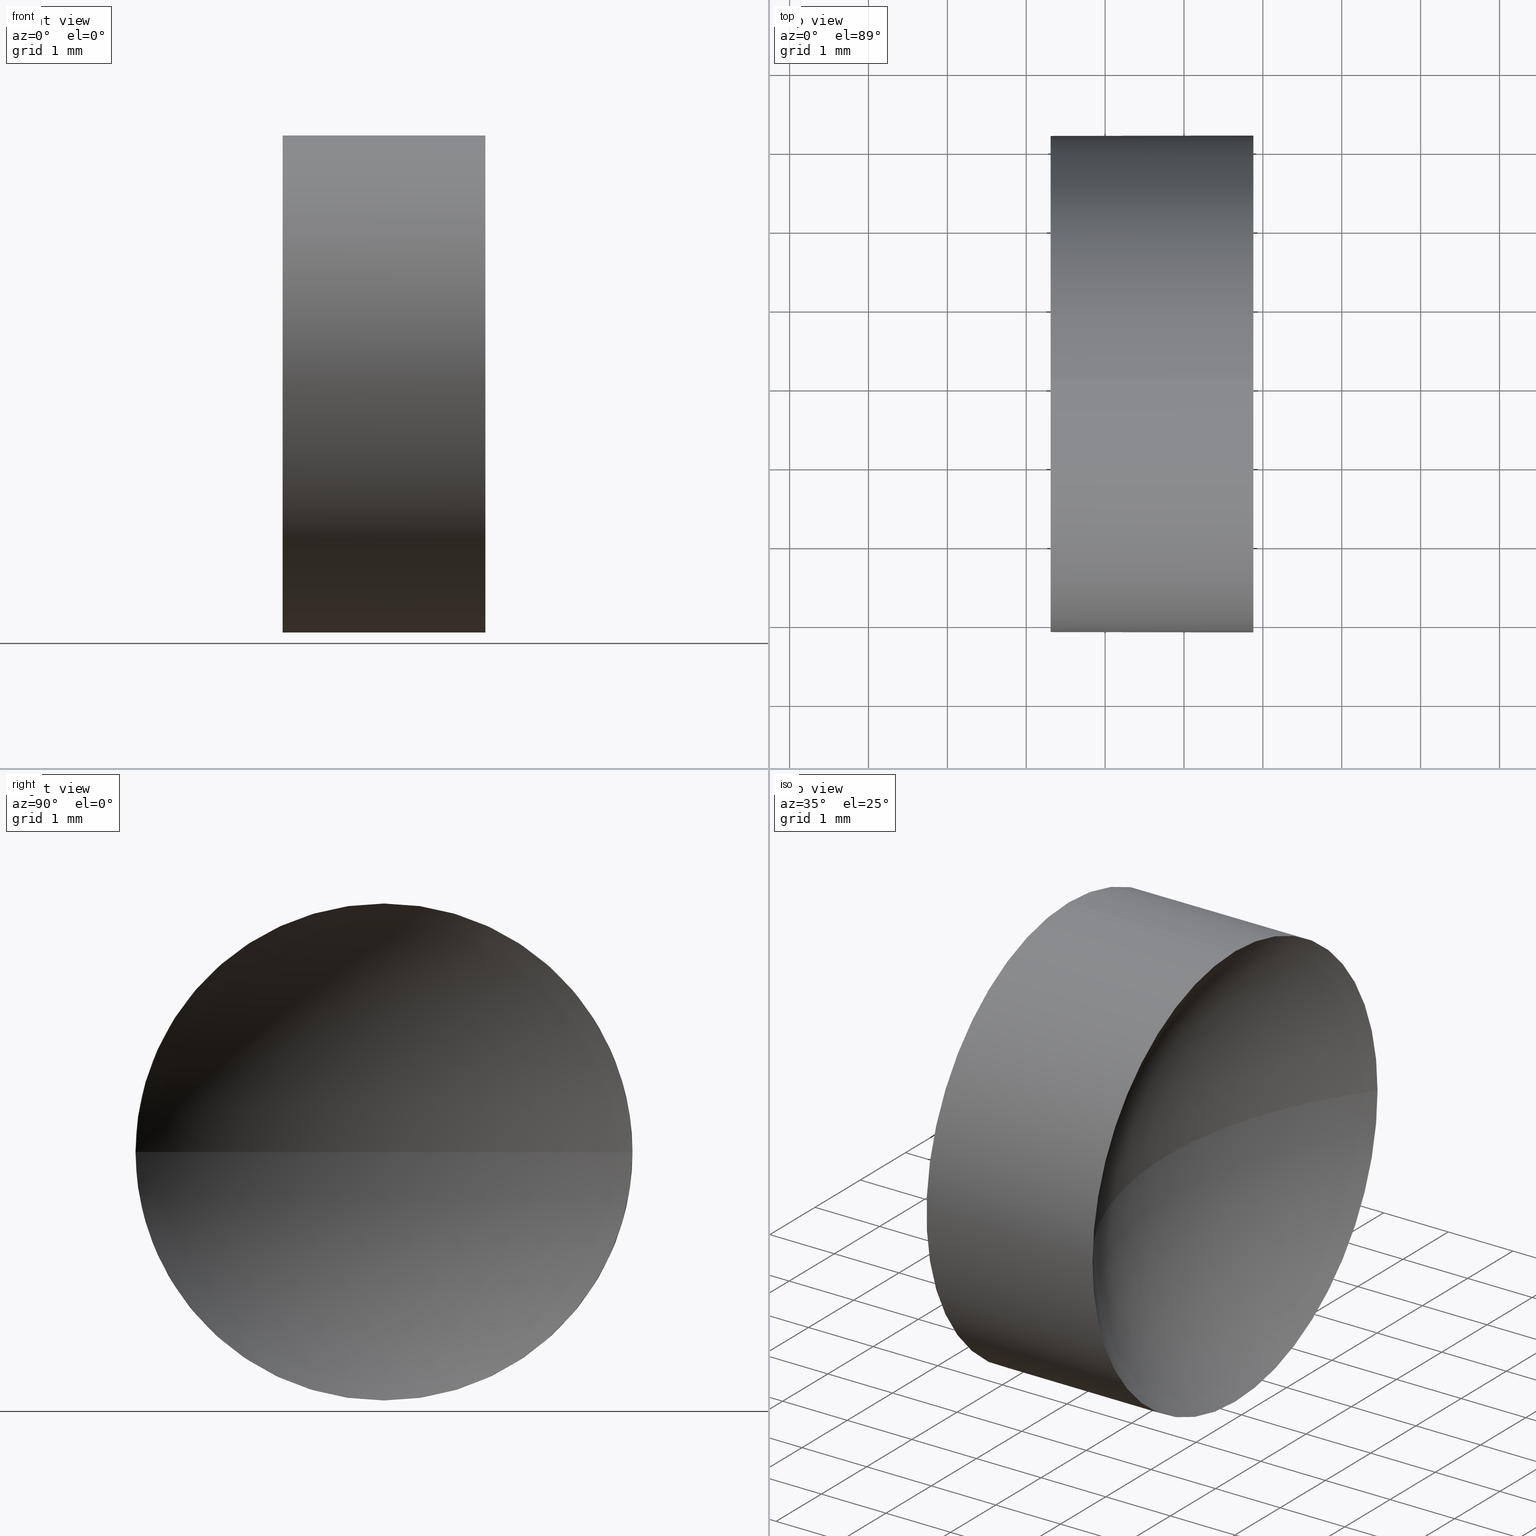
[diagram: canonical four-view strip — front | top / right | iso, engineering-drawing reading convention]
A machine part, canonical four-view strip (front | top / right | iso — engineering-drawing reading convention). The complete STEP part file that produces these views, byte-faithful:
ISO-10303-21;
HEADER;
FILE_DESCRIPTION (( 'STEP AP214' ),
    '1' );
FILE_NAME ('120124.STEP',
    '2019-06-19T01:46:05',
    ( '' ),
    ( '' ),
    'SwSTEP 2.0',
    'SolidWorks 2016',
    '' );
FILE_SCHEMA (( 'AUTOMOTIVE_DESIGN' ));
ENDSEC;

DATA;
#1 = DIRECTION ( 'NONE',  ( 0.0000000000000000000, 0.0000000000000000000, 1.000000000000000000 ) ) ;
#2 = CARTESIAN_POINT ( 'NONE',  ( 24.87970788047242400, 13.03112609140304000, 3.149999999999998100 ) ) ;
#3 = FACE_OUTER_BOUND ( 'NONE', #4, .T. ) ;
#4 = EDGE_LOOP ( 'NONE', ( #166, #107, #28, #45 ) ) ;
#5 = CARTESIAN_POINT ( 'NONE',  ( 28.97926883257449000, 13.03112609140304000, 0.0000000000000000000 ) ) ;
#6 = DIRECTION ( 'NONE',  ( 0.0000000000000000000, 0.0000000000000000000, -1.000000000000000000 ) ) ;
#7 = MECHANICAL_DESIGN_GEOMETRIC_PRESENTATION_REPRESENTATION (  '', ( #132 ), #102 ) ;
#8 = CARTESIAN_POINT ( 'NONE',  ( 24.87970788047242400, 13.03112609140304000, 0.0000000000000000000 ) ) ;
#9 = CARTESIAN_POINT ( 'NONE',  ( 24.87970788047242400, 13.03112609140304000, 0.0000000000000000000 ) ) ;
#10 = CIRCLE ( 'NONE', #96, 5.170000000000000800 ) ;
#11 = CARTESIAN_POINT ( 'NONE',  ( 20.68403063513288800, 13.03112609140304000, -3.149999999999998100 ) ) ;
#12 =( GEOMETRIC_REPRESENTATION_CONTEXT ( 3 ) GLOBAL_UNCERTAINTY_ASSIGNED_CONTEXT ( ( #97 ) ) GLOBAL_UNIT_ASSIGNED_CONTEXT ( ( #171, #17, #131 ) ) REPRESENTATION_CONTEXT ( 'NONE', 'WORKASPACE' ) );
#13 = DIRECTION ( 'NONE',  ( 0.0000000000000000000, -1.224646799147353200E-016, 1.000000000000000000 ) ) ;
#14 =( NAMED_UNIT ( * ) PLANE_ANGLE_UNIT ( ) SI_UNIT ( $, .RADIAN. ) );
#15 = CARTESIAN_POINT ( 'NONE',  ( 0.0000000000000000000, 0.0000000000000000000, 0.0000000000000000000 ) ) ;
#16 = ORIENTED_EDGE ( 'NONE', *, *, #93, .T. ) ;
#17 =( NAMED_UNIT ( * ) PLANE_ANGLE_UNIT ( ) SI_UNIT ( $, .RADIAN. ) );
#18 = ORIENTED_EDGE ( 'NONE', *, *, #50, .F. ) ;
#19 = DIRECTION ( 'NONE',  ( -1.000000000000000000, -0.0000000000000000000, -0.0000000000000000000 ) ) ;
#20 = CIRCLE ( 'NONE', #145, 5.169999999999999000 ) ;
#21 = CARTESIAN_POINT ( 'NONE',  ( 20.68403063513288800, 13.03112609140304000, 0.0000000000000000000 ) ) ;
#22 = AXIS2_PLACEMENT_3D ( 'NONE', #46, #163, #64 ) ;
#23 = ORIENTED_EDGE ( 'NONE', *, *, #59, .F. ) ;
#24 = DIRECTION ( 'NONE',  ( -1.000000000000000000, -0.0000000000000000000, -0.0000000000000000000 ) ) ;
#25 = DIRECTION ( 'NONE',  ( 0.0000000000000000000, 0.0000000000000000000, 1.000000000000000000 ) ) ;
#26 = VECTOR ( 'NONE', #19, 1000.000000000000000 ) ;
#27 = ADVANCED_BREP_SHAPE_REPRESENTATION ( '120124', ( #175, #122 ), #12 ) ;
#28 = ORIENTED_EDGE ( 'NONE', *, *, #172, .F. ) ;
#29 = FILL_AREA_STYLE_COLOUR ( '', #47 ) ;
#30 =( NAMED_UNIT ( * ) SI_UNIT ( $, .STERADIAN. ) SOLID_ANGLE_UNIT ( ) );
#31 = PRESENTATION_STYLE_ASSIGNMENT (( #157 ) ) ;
#32 = CARTESIAN_POINT ( 'NONE',  ( 28.97926883257449000, 13.03112609140304000, 0.0000000000000000000 ) ) ;
#33 = DIRECTION ( 'NONE',  ( 0.0000000000000000000, 0.0000000000000000000, 1.000000000000000000 ) ) ;
#34 = VECTOR ( 'NONE', #125, 1000.000000000000000 ) ;
#35 = ORIENTED_EDGE ( 'NONE', *, *, #50, .T. ) ;
#36 = CARTESIAN_POINT ( 'NONE',  ( 24.87970788047242400, 13.03112609140304000, 0.0000000000000000000 ) ) ;
#37 = FACE_OUTER_BOUND ( 'NONE', #183, .T. ) ;
#38 = VERTEX_POINT ( 'NONE', #177 ) ;
#39 = DIRECTION ( 'NONE',  ( 0.0000000000000000000, 0.0000000000000000000, 1.000000000000000000 ) ) ;
#40 = LINE ( 'NONE', #11, #34 ) ;
#41 = DIRECTION ( 'NONE',  ( 0.0000000000000000000, 0.0000000000000000000, 1.000000000000000000 ) ) ;
#42 = ORIENTED_EDGE ( 'NONE', *, *, #134, .F. ) ;
#43 = FILL_AREA_STYLE ('',( #29 ) ) ;
#44 = DIRECTION ( 'NONE',  ( 1.000000000000000000, 0.0000000000000000000, 0.0000000000000000000 ) ) ;
#45 = ORIENTED_EDGE ( 'NONE', *, *, #79, .F. ) ;
#46 = CARTESIAN_POINT ( 'NONE',  ( 22.30926883257449200, 13.03112609140304000, 0.0000000000000000000 ) ) ;
#47 = COLOUR_RGB ( '',1.000000000000000000, 1.000000000000000000, 1.000000000000000000 ) ;
#48 = STYLED_ITEM ( 'NONE', ( #31 ), #27 ) ;
#49 = ORIENTED_EDGE ( 'NONE', *, *, #67, .T. ) ;
#50 = EDGE_CURVE ( 'NONE', #78, #139, #105, .T. ) ;
#51 = PRODUCT_DEFINITION_SHAPE ( 'NONE', 'NONE',  #153 ) ;
#52 = AXIS2_PLACEMENT_3D ( 'NONE', #21, #65, #160 ) ;
#53 = FACE_OUTER_BOUND ( 'NONE', #66, .T. ) ;
#54 = APPLICATION_PROTOCOL_DEFINITION ( 'draft international standard', 'automotive_design', 1998, #118 ) ;
#55 = FILL_AREA_STYLE ('',( #147 ) ) ;
#56 = APPLICATION_CONTEXT ( 'automotive_design' ) ;
#57 = ORIENTED_EDGE ( 'NONE', *, *, #172, .T. ) ;
#58 =( LENGTH_UNIT ( ) NAMED_UNIT ( * ) SI_UNIT ( .MILLI., .METRE. ) );
#59 = EDGE_CURVE ( 'NONE', #162, #176, #133, .T. ) ;
#60 = CARTESIAN_POINT ( 'NONE',  ( 22.30926883257449200, 13.03112609140304000, -3.149999999999998100 ) ) ;
#61 = AXIS2_PLACEMENT_3D ( 'NONE', #9, #108, #83 ) ;
#62 = SPHERICAL_SURFACE ( 'NONE', #185, 5.169999999999999000 ) ;
#63 = FACE_OUTER_BOUND ( 'NONE', #152, .T. ) ;
#64 = DIRECTION ( 'NONE',  ( 0.0000000000000000000, 0.0000000000000000000, 1.000000000000000000 ) ) ;
#65 = DIRECTION ( 'NONE',  ( -1.000000000000000000, -0.0000000000000000000, -0.0000000000000000000 ) ) ;
#66 = EDGE_LOOP ( 'NONE', ( #103, #178, #138, #49, #18 ) ) ;
#67 = EDGE_CURVE ( 'NONE', #162, #139, #170, .T. ) ;
#68 = CARTESIAN_POINT ( 'NONE',  ( 24.87970788047242400, 9.881126091403041700, 0.0000000000000000000 ) ) ;
#69 = ORIENTED_EDGE ( 'NONE', *, *, #59, .T. ) ;
#70 = CARTESIAN_POINT ( 'NONE',  ( 22.30926883257449200, 13.03112609140304000, 0.0000000000000000000 ) ) ;
#71 = PLANE ( 'NONE',  #141 ) ;
#72 = AXIS2_PLACEMENT_3D ( 'NONE', #8, #82, #39 ) ;
#73 = CLOSED_SHELL ( 'NONE', ( #89, #168, #143, #87, #144 ) ) ;
#74 = DIRECTION ( 'NONE',  ( 0.0000000000000000000, -1.000000000000000000, 0.0000000000000000000 ) ) ;
#75 = EDGE_CURVE ( 'NONE', #123, #162, #95, .T. ) ;
#76 = CARTESIAN_POINT ( 'NONE',  ( 24.87970788047242400, 16.18112609140303700, 3.857637417314161200E-016 ) ) ;
#77 = CYLINDRICAL_SURFACE ( 'NONE', #181, 3.149999999999998100 ) ;
#78 = VERTEX_POINT ( 'NONE', #60 ) ;
#79 = EDGE_CURVE ( 'NONE', #38, #123, #98, .T. ) ;
#80 = PRODUCT_DEFINITION_FORMATION_WITH_SPECIFIED_SOURCE ( '�κ�', '', #146, .NOT_KNOWN. ) ;
#81 = DIRECTION ( 'NONE',  ( -1.000000000000000000, -0.0000000000000000000, -0.0000000000000000000 ) ) ;
#82 = DIRECTION ( 'NONE',  ( -1.000000000000000000, -0.0000000000000000000, -0.0000000000000000000 ) ) ;
#83 = DIRECTION ( 'NONE',  ( 0.0000000000000000000, 0.0000000000000000000, 1.000000000000000000 ) ) ;
#84 = CARTESIAN_POINT ( 'NONE',  ( 28.97926883257449000, 13.03112609140304000, 0.0000000000000000000 ) ) ;
#85 = CIRCLE ( 'NONE', #154, 3.149999999999998100 ) ;
#86 = ORIENTED_EDGE ( 'NONE', *, *, #134, .T. ) ;
#87 = ADVANCED_FACE ( 'NONE', ( #53 ), #100, .T. ) ;
#88 = CARTESIAN_POINT ( 'NONE',  ( 22.30926883257449200, 13.03112609140304000, 0.0000000000000000000 ) ) ;
#89 = ADVANCED_FACE ( 'NONE', ( #63 ), #77, .T. ) ;
#90 = EDGE_LOOP ( 'NONE', ( #121, #23, #117, #57 ) ) ;
#91 = DIRECTION ( 'NONE',  ( 0.0000000000000000000, 0.0000000000000000000, 1.000000000000000000 ) ) ;
#92 = AXIS2_PLACEMENT_3D ( 'NONE', #5, #91, #74 ) ;
#93 = EDGE_CURVE ( 'NONE', #176, #38, #164, .T. ) ;
#94 = DIRECTION ( 'NONE',  ( 0.0000000000000000000, 0.0000000000000000000, 1.000000000000000000 ) ) ;
#95 = CIRCLE ( 'NONE', #61, 3.149999999999998100 ) ;
#96 = AXIS2_PLACEMENT_3D ( 'NONE', #32, #6, #130 ) ;
#97 = UNCERTAINTY_MEASURE_WITH_UNIT (LENGTH_MEASURE( 1.000000000000000100E-005 ), #171, 'distance_accuracy_value', 'NONE');
#98 = CIRCLE ( 'NONE', #106, 3.149999999999998100 ) ;
#99 = EDGE_CURVE ( 'NONE', #176, #109, #20, .T. ) ;
#100 = CYLINDRICAL_SURFACE ( 'NONE', #52, 3.149999999999998100 ) ;
#101 = DIRECTION ( 'NONE',  ( 0.0000000000000000000, 0.0000000000000000000, -1.000000000000000000 ) ) ;
#102 =( GEOMETRIC_REPRESENTATION_CONTEXT ( 3 ) GLOBAL_UNCERTAINTY_ASSIGNED_CONTEXT ( ( #184 ) ) GLOBAL_UNIT_ASSIGNED_CONTEXT ( ( #58, #129, #30 ) ) REPRESENTATION_CONTEXT ( 'NONE', 'WORKASPACE' ) );
#103 = ORIENTED_EDGE ( 'NONE', *, *, #158, .F. ) ;
#104 = APPLICATION_PROTOCOL_DEFINITION ( 'draft international standard', 'automotive_design', 1998, #56 ) ;
#105 = CIRCLE ( 'NONE', #22, 3.149999999999998100 ) ;
#106 = AXIS2_PLACEMENT_3D ( 'NONE', #36, #81, #135 ) ;
#107 = ORIENTED_EDGE ( 'NONE', *, *, #99, .T. ) ;
#108 = DIRECTION ( 'NONE',  ( -1.000000000000000000, -0.0000000000000000000, -0.0000000000000000000 ) ) ;
#109 = VERTEX_POINT ( 'NONE', #165 ) ;
#110 = PRESENTATION_LAYER_ASSIGNMENT (  '', '', ( #48 ) ) ;
#111 = SHAPE_DEFINITION_REPRESENTATION ( #51, #27 ) ;
#112 = FACE_OUTER_BOUND ( 'NONE', #90, .T. ) ;
#113 = ORIENTED_EDGE ( 'NONE', *, *, #158, .T. ) ;
#114 = PRODUCT_CONTEXT ( 'NONE', #118, 'mechanical' ) ;
#115 = SURFACE_SIDE_STYLE ('',( #151 ) ) ;
#116 = SURFACE_STYLE_USAGE ( .BOTH. , #174 ) ;
#117 = ORIENTED_EDGE ( 'NONE', *, *, #75, .F. ) ;
#118 = APPLICATION_CONTEXT ( 'automotive_design' ) ;
#119 = MECHANICAL_DESIGN_GEOMETRIC_PRESENTATION_REPRESENTATION (  '', ( #48 ), #127 ) ;
#120 = PRESENTATION_STYLE_ASSIGNMENT (( #116 ) ) ;
#121 = ORIENTED_EDGE ( 'NONE', *, *, #99, .F. ) ;
#122 = AXIS2_PLACEMENT_3D ( 'NONE', #15, #33, #44 ) ;
#123 = VERTEX_POINT ( 'NONE', #68 ) ;
#124 = CARTESIAN_POINT ( 'NONE',  ( 22.30926883257449200, 13.03112609140304000, 3.149999999999998100 ) ) ;
#125 = DIRECTION ( 'NONE',  ( -1.000000000000000000, -0.0000000000000000000, -0.0000000000000000000 ) ) ;
#126 = DIRECTION ( 'NONE',  ( 0.0000000000000000000, -1.000000000000000000, -1.224646799147353200E-016 ) ) ;
#127 =( GEOMETRIC_REPRESENTATION_CONTEXT ( 3 ) GLOBAL_UNCERTAINTY_ASSIGNED_CONTEXT ( ( #149 ) ) GLOBAL_UNIT_ASSIGNED_CONTEXT ( ( #173, #14, #128 ) ) REPRESENTATION_CONTEXT ( 'NONE', 'WORKASPACE' ) );
#128 =( NAMED_UNIT ( * ) SI_UNIT ( $, .STERADIAN. ) SOLID_ANGLE_UNIT ( ) );
#129 =( NAMED_UNIT ( * ) PLANE_ANGLE_UNIT ( ) SI_UNIT ( $, .RADIAN. ) );
#130 = DIRECTION ( 'NONE',  ( -1.000000000000000000, 0.0000000000000000000, 0.0000000000000000000 ) ) ;
#131 =( NAMED_UNIT ( * ) SI_UNIT ( $, .STERADIAN. ) SOLID_ANGLE_UNIT ( ) );
#132 = STYLED_ITEM ( 'NONE', ( #120 ), #175 ) ;
#133 = CIRCLE ( 'NONE', #72, 3.149999999999998100 ) ;
#134 = EDGE_CURVE ( 'NONE', #139, #78, #85, .T. ) ;
#135 = DIRECTION ( 'NONE',  ( 0.0000000000000000000, 0.0000000000000000000, 1.000000000000000000 ) ) ;
#136 = PRODUCT_DEFINITION_CONTEXT ( 'detailed design', #56, 'design' ) ;
#137 = CARTESIAN_POINT ( 'NONE',  ( 28.97926883257449000, 13.03112609140304000, 0.0000000000000000000 ) ) ;
#138 = ORIENTED_EDGE ( 'NONE', *, *, #75, .T. ) ;
#139 = VERTEX_POINT ( 'NONE', #124 ) ;
#140 = DIRECTION ( 'NONE',  ( 0.0000000000000000000, -1.000000000000000000, 0.0000000000000000000 ) ) ;
#141 = AXIS2_PLACEMENT_3D ( 'NONE', #70, #142, #101 ) ;
#142 = DIRECTION ( 'NONE',  ( 1.000000000000000000, 0.0000000000000000000, 0.0000000000000000000 ) ) ;
#143 = ADVANCED_FACE ( 'NONE', ( #112 ), #62, .F. ) ;
#144 = ADVANCED_FACE ( 'NONE', ( #37 ), #71, .F. ) ;
#145 = AXIS2_PLACEMENT_3D ( 'NONE', #84, #13, #126 ) ;
#146 = PRODUCT ( '120124', '120124', '', ( #114 ) ) ;
#147 = FILL_AREA_STYLE_COLOUR ( '', #182 ) ;
#148 = ORIENTED_EDGE ( 'NONE', *, *, #67, .F. ) ;
#149 = UNCERTAINTY_MEASURE_WITH_UNIT (LENGTH_MEASURE( 1.000000000000000100E-005 ), #173, 'distance_accuracy_value', 'NONE');
#150 = PRESENTATION_LAYER_ASSIGNMENT (  '', '', ( #132 ) ) ;
#151 = SURFACE_STYLE_FILL_AREA ( #43 ) ;
#152 = EDGE_LOOP ( 'NONE', ( #16, #113, #42, #148, #69 ) ) ;
#153 = PRODUCT_DEFINITION ( 'δ֪', '', #80, #136 ) ;
#154 = AXIS2_PLACEMENT_3D ( 'NONE', #88, #169, #1 ) ;
#155 = PRODUCT_RELATED_PRODUCT_CATEGORY ( 'part', '', ( #146 ) ) ;
#156 = SURFACE_STYLE_FILL_AREA ( #55 ) ;
#157 = SURFACE_STYLE_USAGE ( .BOTH. , #115 ) ;
#158 = EDGE_CURVE ( 'NONE', #38, #78, #40, .T. ) ;
#159 = CARTESIAN_POINT ( 'NONE',  ( 20.68403063513288800, 13.03112609140304000, 0.0000000000000000000 ) ) ;
#160 = DIRECTION ( 'NONE',  ( 0.0000000000000000000, 0.0000000000000000000, 1.000000000000000000 ) ) ;
#161 = SPHERICAL_SURFACE ( 'NONE', #92, 5.169999999999999000 ) ;
#162 = VERTEX_POINT ( 'NONE', #2 ) ;
#163 = DIRECTION ( 'NONE',  ( -1.000000000000000000, -0.0000000000000000000, -0.0000000000000000000 ) ) ;
#164 = CIRCLE ( 'NONE', #167, 3.149999999999998100 ) ;
#165 = CARTESIAN_POINT ( 'NONE',  ( 23.80926883257448900, 13.03112609140304000, 0.0000000000000000000 ) ) ;
#166 = ORIENTED_EDGE ( 'NONE', *, *, #93, .F. ) ;
#167 = AXIS2_PLACEMENT_3D ( 'NONE', #186, #24, #25 ) ;
#168 = ADVANCED_FACE ( 'NONE', ( #3 ), #161, .F. ) ;
#169 = DIRECTION ( 'NONE',  ( -1.000000000000000000, -0.0000000000000000000, -0.0000000000000000000 ) ) ;
#170 = LINE ( 'NONE', #179, #26 ) ;
#171 =( LENGTH_UNIT ( ) NAMED_UNIT ( * ) SI_UNIT ( .MILLI., .METRE. ) );
#172 = EDGE_CURVE ( 'NONE', #123, #109, #10, .T. ) ;
#173 =( LENGTH_UNIT ( ) NAMED_UNIT ( * ) SI_UNIT ( .MILLI., .METRE. ) );
#174 = SURFACE_SIDE_STYLE ('',( #156 ) ) ;
#175 = MANIFOLD_SOLID_BREP ( '��ת1', #73 ) ;
#176 = VERTEX_POINT ( 'NONE', #76 ) ;
#177 = CARTESIAN_POINT ( 'NONE',  ( 24.87970788047242400, 13.03112609140304000, -3.149999999999998100 ) ) ;
#178 = ORIENTED_EDGE ( 'NONE', *, *, #79, .T. ) ;
#179 = CARTESIAN_POINT ( 'NONE',  ( 20.68403063513288800, 13.03112609140304000, 3.149999999999998100 ) ) ;
#180 = DIRECTION ( 'NONE',  ( -1.000000000000000000, -0.0000000000000000000, -0.0000000000000000000 ) ) ;
#181 = AXIS2_PLACEMENT_3D ( 'NONE', #159, #180, #94 ) ;
#182 = COLOUR_RGB ( '',1.000000000000000000, 1.000000000000000000, 1.000000000000000000 ) ;
#183 = EDGE_LOOP ( 'NONE', ( #86, #35 ) ) ;
#184 = UNCERTAINTY_MEASURE_WITH_UNIT (LENGTH_MEASURE( 1.000000000000000100E-005 ), #58, 'distance_accuracy_value', 'NONE');
#185 = AXIS2_PLACEMENT_3D ( 'NONE', #137, #41, #140 ) ;
#186 = CARTESIAN_POINT ( 'NONE',  ( 24.87970788047242400, 13.03112609140304000, 0.0000000000000000000 ) ) ;
ENDSEC;
END-ISO-10303-21;
